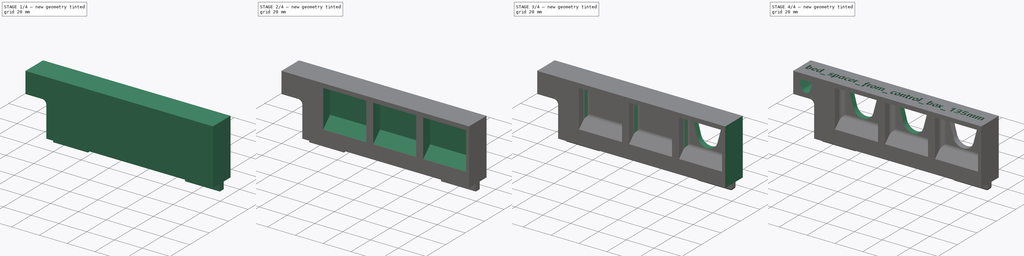
[diagram: build sequence overview — one tinted view per stage of 4, left to right]
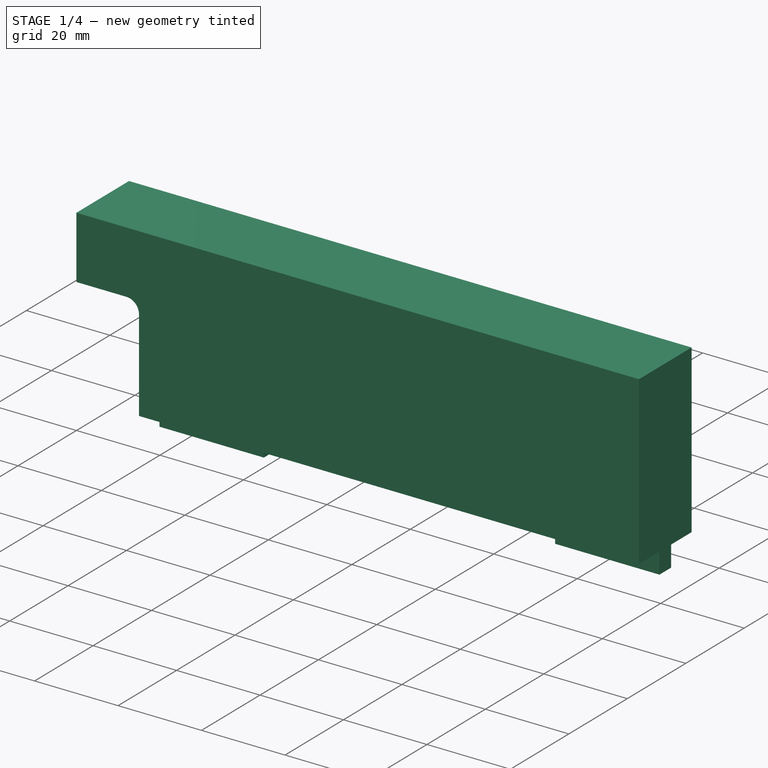
[diagram: stage 1 of 4 — iso view after this stage's code; geometry added in this stage tinted green]
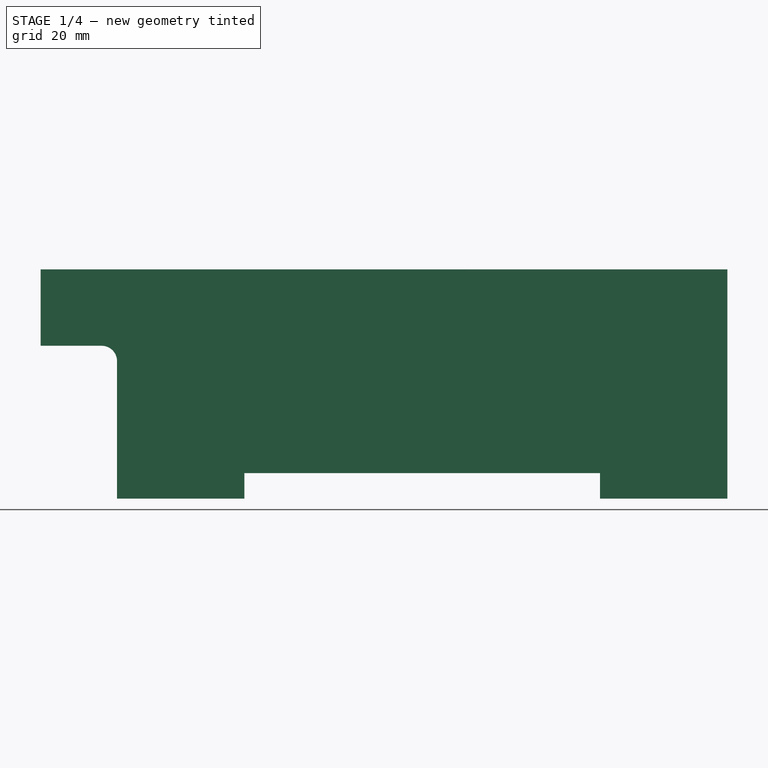
[diagram: stage 1 of 4 — front view after this stage's code; geometry added in this stage tinted green]
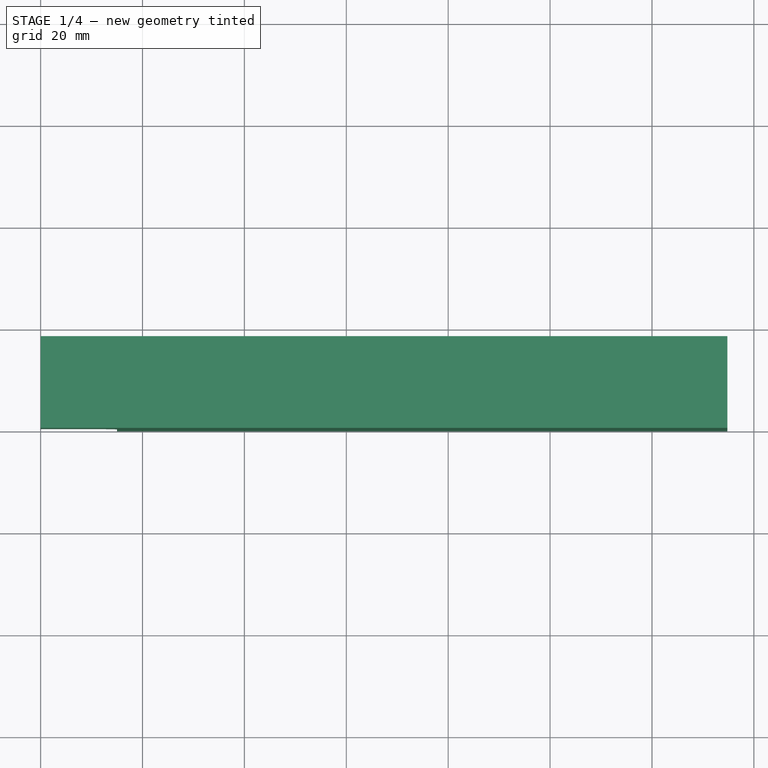
[diagram: stage 1 of 4 — top view after this stage's code; geometry added in this stage tinted green]
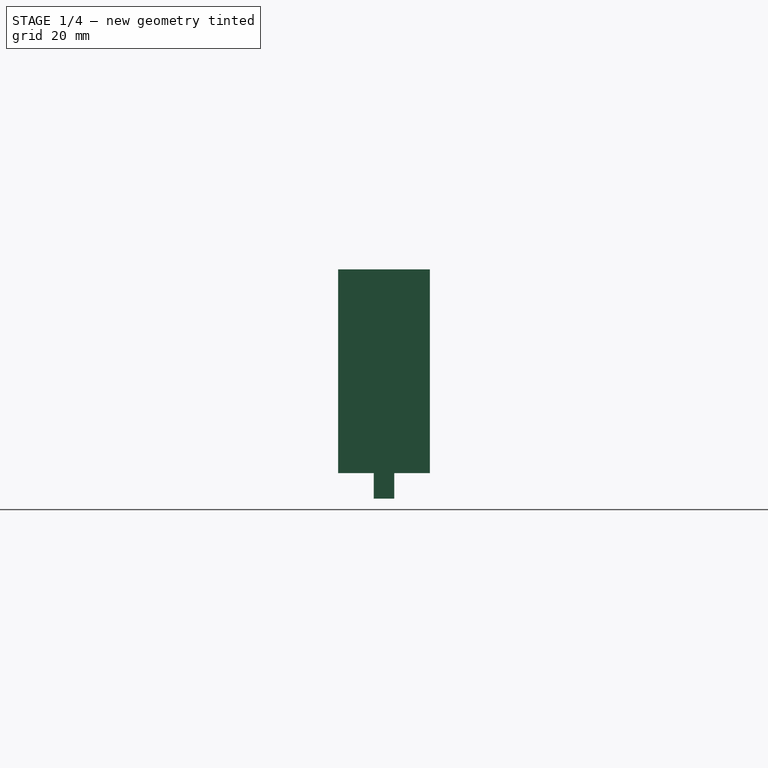
[diagram: stage 1 of 4 — right view after this stage's code; geometry added in this stage tinted green]
FCSTD DOCUMENT  (FreeCAD 0.17R8328 (Git))
Label: bed_spacer_from_control_box_135mm
License: All rights reserved
LicenseURL: http://en.wikipedia.org/wiki/All_rights_reserved
objects: Sketcher::SketchObject×7, PartDesign::Pocket×6, PartDesign::Pad×3, PartDesign::Fillet×2, PartDesign::Chamfer×1, PartDesign::LinearPattern×1, Part::Part2DObjectPython×1, PartDesign::Body×1
note: 31 computed .brp shape members not serialized (recipe doc carries the construction recipe); baked Part::Feature solids carry a one-line shape summary decoded from their .brp

FEATURE [Sketcher::SketchObject] Sketch
  MapMode = 5
  Support = -> [XY_Plane]
  sketch-geometry (4):
    g0: LineSegment StartX=0 StartY=0 StartZ=0 EndX=134.8 EndY=0 EndZ=0
    g1: LineSegment StartX=134.8 StartY=0 StartZ=0 EndX=134.8 EndY=18 EndZ=0
    g2: LineSegment StartX=134.8 StartY=18 StartZ=0 EndX=0 EndY=18 EndZ=0
    g3: LineSegment StartX=0 StartY=18 StartZ=0 EndX=0 EndY=0 EndZ=0
  constraints (11):
    c: Coincident(g0,g1)
    c: Coincident(g1,g2)
    c: Coincident(g2,g3)
    c: Coincident(g3,g0)
    c: Horizontal(g0)
    c: Horizontal(g2)
    c: Vertical(g1)
    c: Vertical(g3)
    c: Coincident(g0,g-1)
    c: DistanceX(g2,g1) = 134.8
    c: DistanceY(g0,g1) = 18
FEATURE [PartDesign::Pad] Pad
  Length = 40
  Length2 = 100
  Profile = -> Sketch
  Type = 0
FEATURE [Sketcher::SketchObject] Sketch001
  MapMode = 5
  Placement = pos=(0,0,0) rot=(1,0,0;1.5708rad)
  Support = -> [Pad]
  sketch-geometry (5):
    g0: LineSegment StartX=0 StartY=25 StartZ=0 EndX=12 EndY=25 EndZ=0
    g1: LineSegment StartX=0 StartY=25 StartZ=0 EndX=0 EndY=0 EndZ=0
    g2: LineSegment StartX=0 StartY=0 StartZ=0 EndX=15 EndY=0 EndZ=0
    g3: LineSegment StartX=15 StartY=0 StartZ=0 EndX=15 EndY=22 EndZ=0
    g4: ArcOfCircle CenterX=12 CenterY=22 CenterZ=0 NormalX=0 NormalY=0 NormalZ=1 Radius=3 StartAngle=0 EndAngle=1.5708
  constraints (13):
    c: Horizontal(g0)
    c: Coincident(g1,g0)
    c: Vertical(g1)
    c: Coincident(g2,g1)
    c: Horizontal(g2)
    c: Coincident(g3,g2)
    c: Vertical(g3)
    c: Tangent(g0,g4) = 1.5708
    c: Tangent(g3,g4) = -1.5708
    c: Coincident(g1,g-1)
    c: DistanceY(g1,g1) = 25
    c: Radius(g4) = 3
    c: DistanceX(g0,g2) = 15
FEATURE [PartDesign::Pocket] Pocket
  BaseFeature = -> Pad
  Length = 5
  Profile = -> Sketch001
  Type = 1
FEATURE [Sketcher::SketchObject] Sketch002
  ExternalGeometry = -> [Pocket]
  MapMode = 5
  Placement = pos=(0,0,0) rot=(1,0,0;3.14159rad)
  Support = -> [Pocket]
  sketch-geometry (11):
    g0: LineSegment StartX=15 StartY=-7 StartZ=0 EndX=40 EndY=-7 EndZ=0
    g1: LineSegment StartX=40 StartY=-7 StartZ=0 EndX=40 EndY=-11 EndZ=0
    g2: LineSegment StartX=40 StartY=-11 StartZ=0 EndX=15 EndY=-11 EndZ=0
    g3: LineSegment StartX=15 StartY=-11 StartZ=0 EndX=15 EndY=-7 EndZ=0
    g4: LineSegment StartX=109.8 StartY=-7 StartZ=0 EndX=134.8 EndY=-7 EndZ=0
    g5: LineSegment StartX=134.8 StartY=-7 StartZ=0 EndX=134.8 EndY=-11 EndZ=0
    g6: LineSegment StartX=134.8 StartY=-11 StartZ=0 EndX=109.8 EndY=-11 EndZ=0
    g7: LineSegment StartX=109.8 StartY=-11 StartZ=0 EndX=109.8 EndY=-7 EndZ=0
    g8: LineSegment [constr] StartX=15 StartY=0 StartZ=0 EndX=40 EndY=-7 EndZ=0
    g9: LineSegment [constr] StartX=15 StartY=-18 StartZ=0 EndX=40 EndY=-11 EndZ=0
    g10: LineSegment [constr] StartX=40 StartY=-7 StartZ=0 EndX=109.8 EndY=-7 EndZ=0
  constraints (31):
    c: Coincident(g0,g1)
    c: Coincident(g1,g2)
    c: Coincident(g2,g3)
    c: Coincident(g3,g0)
    c: Horizontal(g0)
    c: Horizontal(g2)
    c: Vertical(g1)
    c: Coincident(g4,g5)
    c: Coincident(g5,g6)
    c: Coincident(g6,g7)
    c: Coincident(g7,g4)
    c: Horizontal(g4)
    c: Horizontal(g6)
    c: Vertical(g5)
    c: Vertical(g7)
    c: Equal(g4,g0)
    c: Equal(g0,g2)
    c: Equal(g2,g6)
    c: DistanceX(g4,g4) = 25
    c: PointOnObject(g0,g-4)
    c: Equal(g1,g7)
    c: DistanceY(g7,g7) = 4
    c: PointOnObject(g5,g-5)
    c: Coincident(g8,g-4)
    c: Coincident(g8,g0)
    c: Coincident(g9,g-4)
    c: Coincident(g9,g1)
    c: Equal(g9,g8)
    c: Coincident(g10,g0)
    c: Horizontal(g10)
    c: Coincident(g4,g10)
FEATURE [PartDesign::Pad] Pad001
  BaseFeature = -> Pocket
  Length = 5
  Length2 = 100
  Profile = -> Sketch002
  Type = 0
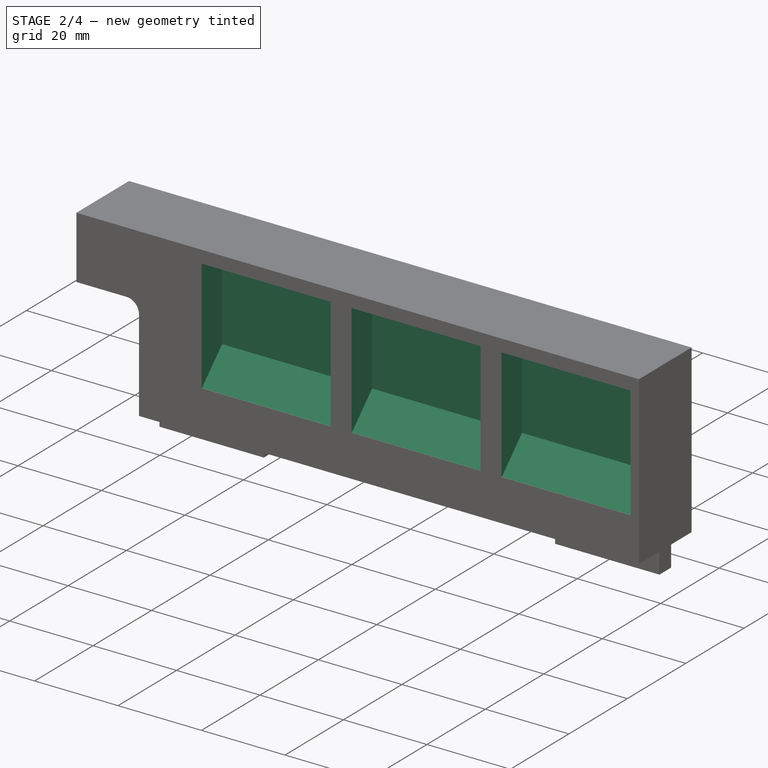
[diagram: stage 2 of 4 — iso view after this stage's code; geometry added in this stage tinted green]
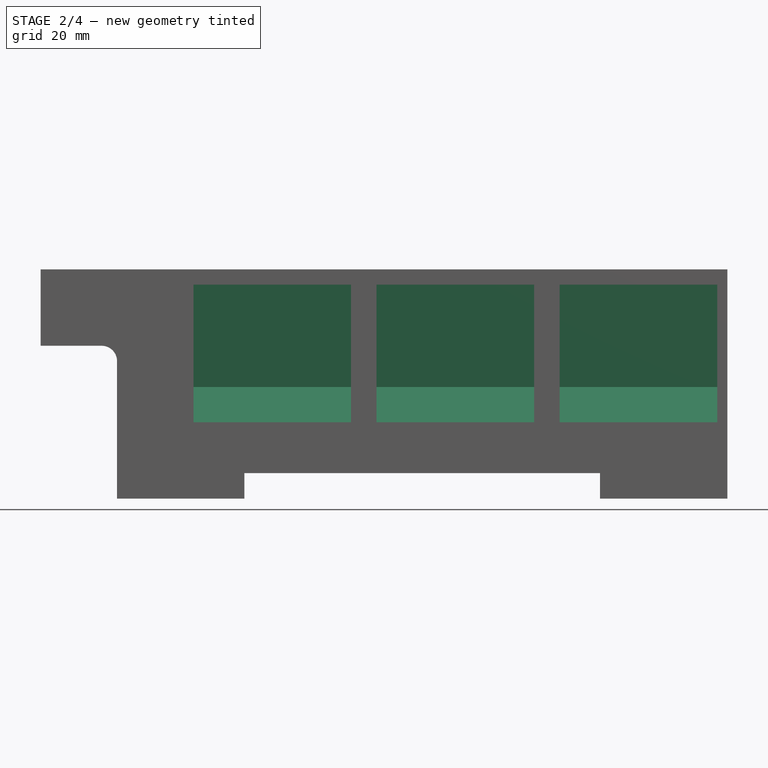
[diagram: stage 2 of 4 — front view after this stage's code; geometry added in this stage tinted green]
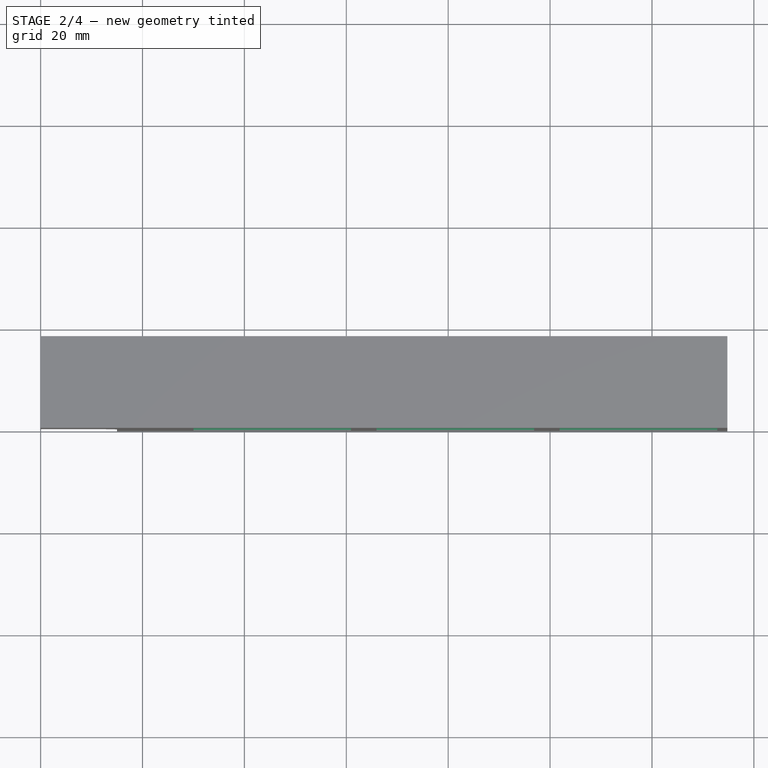
[diagram: stage 2 of 4 — top view after this stage's code; geometry added in this stage tinted green]
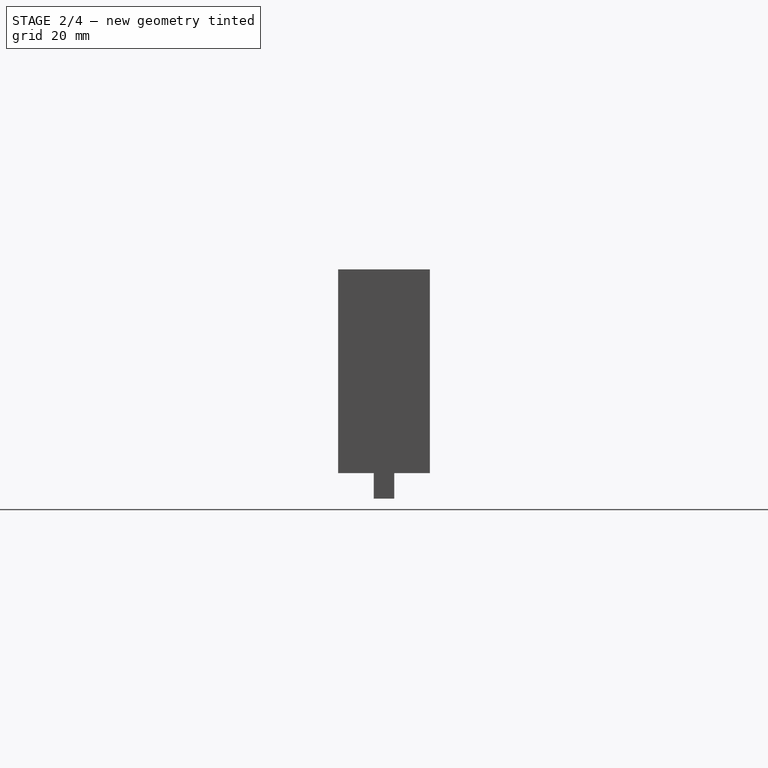
[diagram: stage 2 of 4 — right view after this stage's code; geometry added in this stage tinted green]
FEATURE [Sketcher::SketchObject] Sketch003
  ExternalGeometry = -> [Pad001]
  MapMode = 5
  Placement = pos=(0,18,0) rot=(0,0.707107,0.707107;3.14159rad)
  Support = -> [Pad001]
  sketch-geometry (14):
    g0: LineSegment StartX=-132.8 StartY=37 StartZ=0 EndX=-101.867 EndY=37 EndZ=0
    g1: LineSegment StartX=-101.867 StartY=37 StartZ=0 EndX=-101.867 EndY=10 EndZ=0
    g2: LineSegment StartX=-101.867 StartY=10 StartZ=0 EndX=-132.8 EndY=10 EndZ=0
    g3: LineSegment StartX=-132.8 StartY=10 StartZ=0 EndX=-132.8 EndY=37 EndZ=0
    g4: LineSegment StartX=-60.9333 StartY=37 StartZ=0 EndX=-30 EndY=37 EndZ=0
    g5: LineSegment StartX=-30 StartY=37 StartZ=0 EndX=-30 EndY=10 EndZ=0
    g6: LineSegment StartX=-30 StartY=10 StartZ=0 EndX=-60.9333 EndY=10 EndZ=0
    g7: LineSegment StartX=-60.9333 StartY=10 StartZ=0 EndX=-60.9333 EndY=37 EndZ=0
    g8: LineSegment StartX=-96.8667 StartY=37 StartZ=0 EndX=-65.9333 EndY=37 EndZ=0
    g9: LineSegment StartX=-65.9333 StartY=37 StartZ=0 EndX=-65.9333 EndY=10 EndZ=0
    g10: LineSegment StartX=-65.9333 StartY=10 StartZ=0 EndX=-96.8667 EndY=10 EndZ=0
    g11: LineSegment StartX=-96.8667 StartY=10 StartZ=0 EndX=-96.8667 EndY=37 EndZ=0
    g12: LineSegment [constr] StartX=-101.867 StartY=37 StartZ=0 EndX=-96.8667 EndY=37 EndZ=0
    g13: LineSegment [constr] StartX=-65.9333 StartY=37 StartZ=0 EndX=-60.9333 EndY=37 EndZ=0
  constraints (41):
    c: Coincident(g0,g1)
    c: Coincident(g1,g2)
    c: Coincident(g2,g3)
    c: Coincident(g3,g0)
    c: Horizontal(g0)
    c: Horizontal(g2)
    c: Vertical(g1)
    c: Vertical(g3)
    c: Coincident(g4,g5)
    c: Coincident(g5,g6)
    c: Coincident(g6,g7)
    c: Coincident(g7,g4)
    c: Horizontal(g4)
    c: Horizontal(g6)
    c: Vertical(g5)
    c: Vertical(g7)
    c: Coincident(g8,g9)
    c: Coincident(g9,g10)
    c: Coincident(g10,g11)
    c: Coincident(g11,g8)
    c: Horizontal(g8)
    c: Horizontal(g10)
    c: Vertical(g9)
    c: Vertical(g11)
    c: Equal(g1,g11)
    c: Equal(g11,g9)
    c: Equal(g9,g7)
    c: Equal(g4,g8)
    c: Equal(g8,g0)
    c: Coincident(g12,g0)
    c: Coincident(g12,g8)
    c: Horizontal(g12)
    c: Coincident(g13,g8)
    c: Coincident(g13,g4)
    c: Horizontal(g13)
    c: Equal(g13,g12)
    c: DistanceX(g12,g12) = 5
    c: DistanceY(g-1,g5) = 10
    c: DistanceY(g4,g-4) = 3
    c: DistanceX(g4,g-4) = 30
    c: DistanceX(g-4,g0) = 2
FEATURE [PartDesign::Pocket] Pocket001
  BaseFeature = -> Pad001
  Length = 7
  Profile = -> Sketch003
  Type = 0
FEATURE [Sketcher::SketchObject] Sketch004
  ExternalGeometry = -> [Pocket001]
  MapMode = 5
  Placement = pos=(0,0,0) rot=(1,0,0;1.5708rad)
  Support = -> [Pocket001]
  sketch-geometry (14):
    g0: LineSegment StartX=30 StartY=37 StartZ=0 EndX=60.9333 EndY=37 EndZ=0
    g1: LineSegment StartX=60.9333 StartY=37 StartZ=0 EndX=60.9333 EndY=10 EndZ=0
    g2: LineSegment StartX=60.9333 StartY=10 StartZ=0 EndX=30 EndY=10 EndZ=0
    g3: LineSegment StartX=30 StartY=10 StartZ=0 EndX=30 EndY=37 EndZ=0
    g4: LineSegment StartX=65.9333 StartY=37 StartZ=0 EndX=96.8667 EndY=37 EndZ=0
    g5: LineSegment StartX=96.8667 StartY=37 StartZ=0 EndX=96.8667 EndY=10 EndZ=0
    g6: LineSegment StartX=96.8667 StartY=10 StartZ=0 EndX=65.9333 EndY=10 EndZ=0
    g7: LineSegment StartX=65.9333 StartY=10 StartZ=0 EndX=65.9333 EndY=37 EndZ=0
    g8: LineSegment StartX=101.867 StartY=37 StartZ=0 EndX=132.8 EndY=37 EndZ=0
    g9: LineSegment StartX=132.8 StartY=37 StartZ=0 EndX=132.8 EndY=10 EndZ=0
    g10: LineSegment StartX=132.8 StartY=10 StartZ=0 EndX=101.867 EndY=10 EndZ=0
    g11: LineSegment StartX=101.867 StartY=10 StartZ=0 EndX=101.867 EndY=37 EndZ=0
    g12: LineSegment [constr] StartX=60.9333 StartY=37 StartZ=0 EndX=65.9333 EndY=37 EndZ=0
    g13: LineSegment [constr] StartX=96.8667 StartY=37 StartZ=0 EndX=101.867 EndY=37 EndZ=0
  constraints (40):
    c: Coincident(g0,g1)
    c: Coincident(g1,g2)
    c: Coincident(g2,g3)
    c: Coincident(g3,g0)
    c: Horizontal(g0)
    c: Horizontal(g2)
    c: Vertical(g1)
    c: Vertical(g3)
    c: Coincident(g4,g5)
    c: Coincident(g5,g6)
    c: Coincident(g6,g7)
    c: Coincident(g7,g4)
    c: Horizontal(g4)
    c: Horizontal(g6)
    c: Vertical(g5)
    c: Vertical(g7)
    c: Coincident(g8,g9)
    c: Coincident(g9,g10)
    c: Coincident(g10,g11)
    c: Coincident(g11,g8)
    c: Horizontal(g8)
    c: Horizontal(g10)
    c: Vertical(g9)
    c: Vertical(g11)
    c: Equal(g8,g4)
    c: Equal(g4,g0)
    c: Equal(g1,g7)
    c: Equal(g7,g11)
    c: Coincident(g12,g0)
    c: Horizontal(g12)
    c: Coincident(g4,g12)
    c: Coincident(g13,g4)
    c: Horizontal(g13)
    c: Coincident(g8,g13)
    c: Equal(g13,g12)
    c: DistanceX(g13,g13) = 5
    c: DistanceX(g-1,g0) = 30
    c: DistanceY(g-1,g2) = 10
    c: DistanceY(g8,g-4) = 3
    c: DistanceX(g8,g-4) = 2
FEATURE [PartDesign::Pocket] Pocket002
  BaseFeature = -> Pocket001
  Length = 7
  Profile = -> Sketch004
  Type = 0
FEATURE [PartDesign::Chamfer] Chamfer
  Base = -> Pocket002 [Edge63,Edge49,Edge55,Edge111,Edge101,Edge117]
  BaseFeature = -> Pocket002
  Size = 6.9
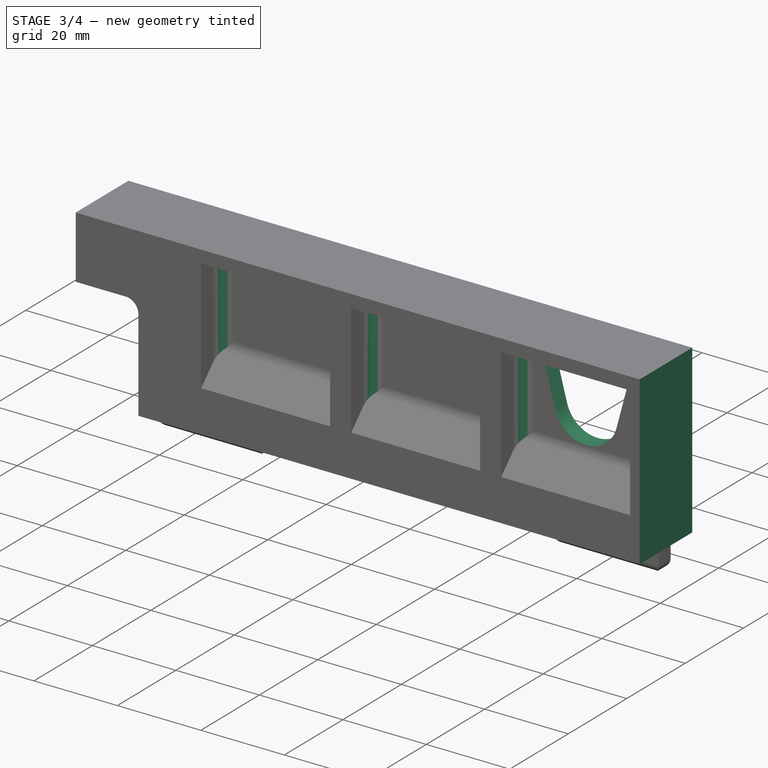
[diagram: stage 3 of 4 — iso view after this stage's code; geometry added in this stage tinted green]
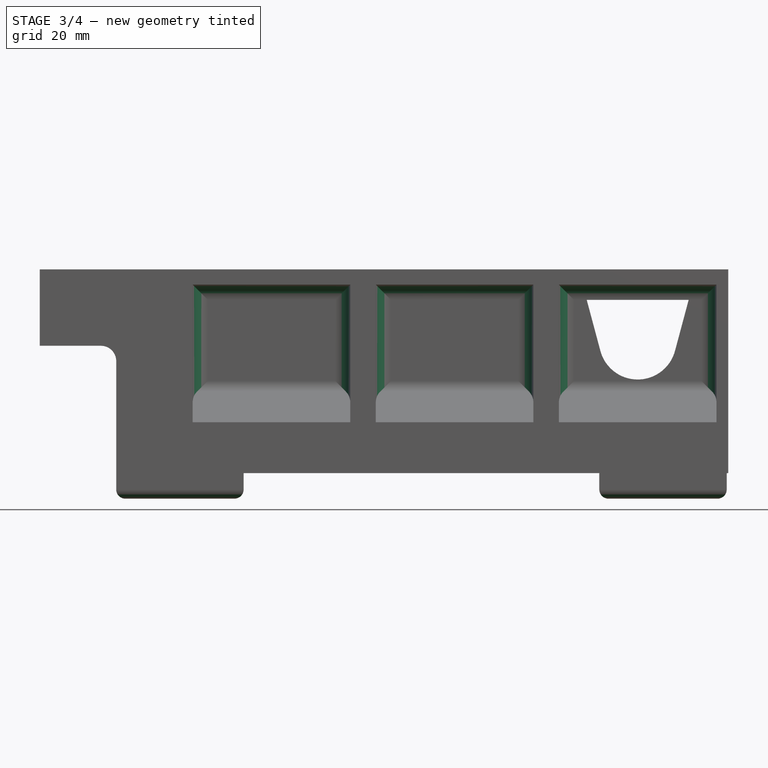
[diagram: stage 3 of 4 — front view after this stage's code; geometry added in this stage tinted green]
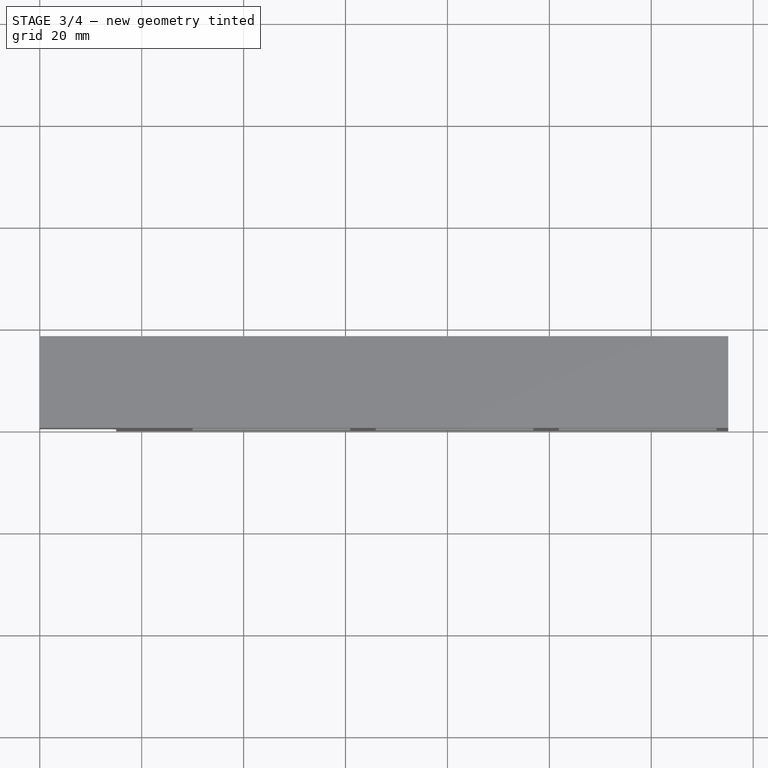
[diagram: stage 3 of 4 — top view after this stage's code; geometry added in this stage tinted green]
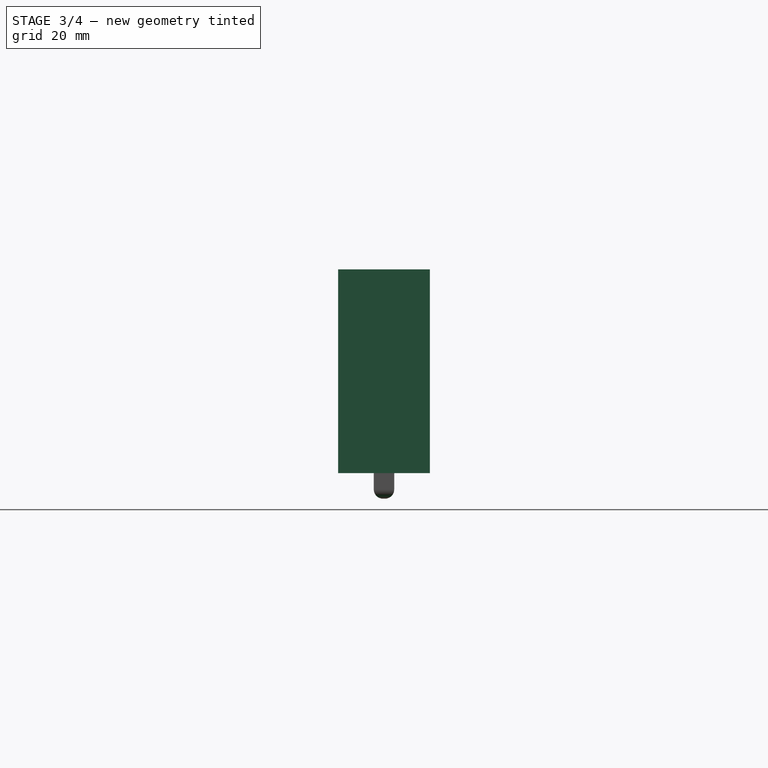
[diagram: stage 3 of 4 — right view after this stage's code; geometry added in this stage tinted green]
FEATURE [PartDesign::Fillet] Fillet
  Base = -> Chamfer [Face54,Face50,Face53,Face34,Face2,Face32]
  BaseFeature = -> Chamfer
  Radius = 3
FEATURE [PartDesign::Fillet] Fillet001
  Base = -> Fillet [Face56,Face57]
  BaseFeature = -> Fillet
  Radius = 1.8
FEATURE [PartDesign::Pad] Pad002
  BaseFeature = -> Fillet001
  Length = 0.3
  Length2 = 100
  Profile = -> Fillet001 [Face15]
  Type = 0
FEATURE [Sketcher::SketchObject] Sketch005
  ExternalGeometry = -> [Pad002]
  MapMode = 5
  Placement = pos=(0,18,0) rot=(0,0.707107,0.707107;3.14159rad)
  Support = -> [Pad002]
  sketch-geometry (6):
    g0: LineSegment StartX=-127.333 StartY=34 StartZ=0 EndX=-124.654 EndY=24 EndZ=0
    g1: LineSegment StartX=-127.333 StartY=34 StartZ=0 EndX=-107.333 EndY=34 EndZ=0
    g2: LineSegment StartX=-107.333 StartY=34 StartZ=0 EndX=-110.013 EndY=24 EndZ=0
    g3: ArcOfCircle CenterX=-117.333 CenterY=25.9615 CenterZ=0 NormalX=0 NormalY=0 NormalZ=1 Radius=7.57875 StartAngle=3.40339 EndAngle=6.02139
    g4: LineSegment [constr] StartX=-127.333 StartY=34 StartZ=0 EndX=-129.8 EndY=34 EndZ=0
    g5: LineSegment [constr] StartX=-107.333 StartY=34 StartZ=0 EndX=-104.867 EndY=34 EndZ=0
  constraints (15):
    c: Coincident(g1,g0)
    c: Horizontal(g1)
    c: Coincident(g2,g1)
    c: Tangent(g0,g3) = -1.5708
    c: Tangent(g2,g3) = 1.5708
    c: Equal(g0,g2)
    c: Angle(g0,g1) = 1.309
    c: DistanceX(g1,g1) = 20
    c: Coincident(g4,g0)
    c: Coincident(g4,g-3)
    c: Coincident(g5,g1)
    c: Coincident(g5,g-3)
    c: Equal(g5,g4)
    c: DistanceY(g0,g4) = 0
    c: DistanceY(g2,g5) = 10
FEATURE [PartDesign::Pocket] Pocket003
  BaseFeature = -> Pad002
  Length = 5
  Profile = -> Sketch005
  Type = 1
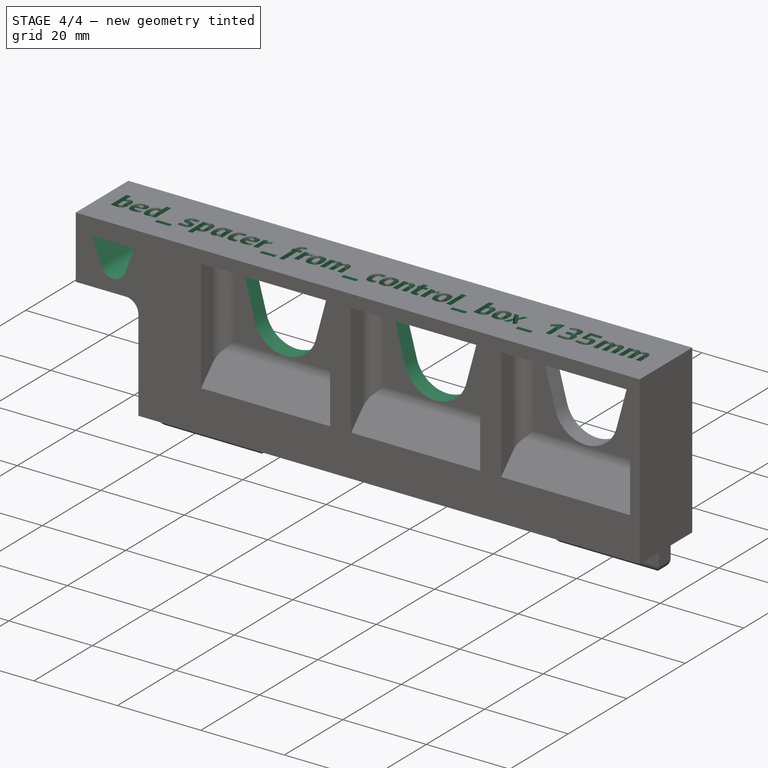
[diagram: stage 4 of 4 — iso view after this stage's code; geometry added in this stage tinted green]
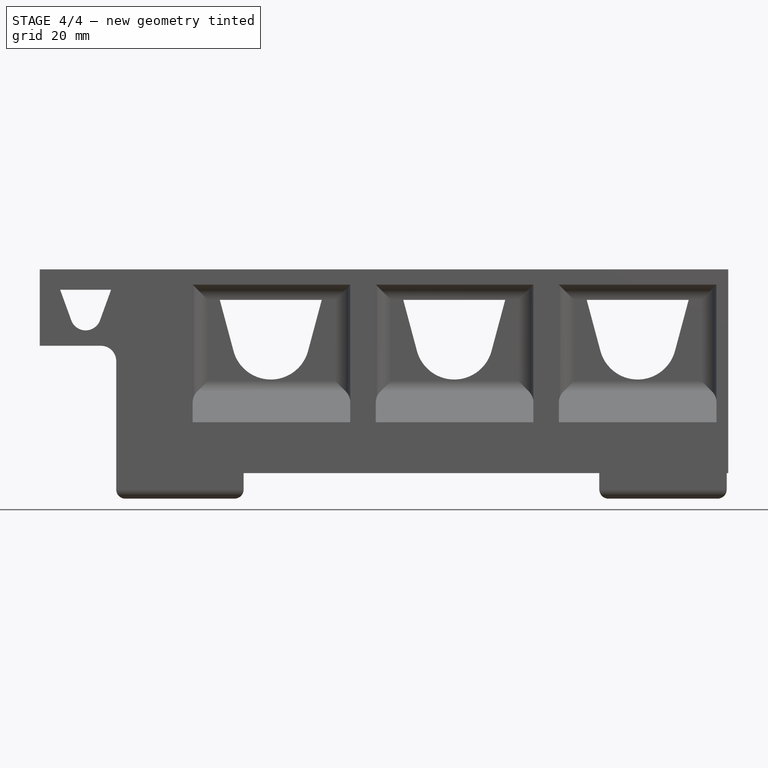
[diagram: stage 4 of 4 — front view after this stage's code; geometry added in this stage tinted green]
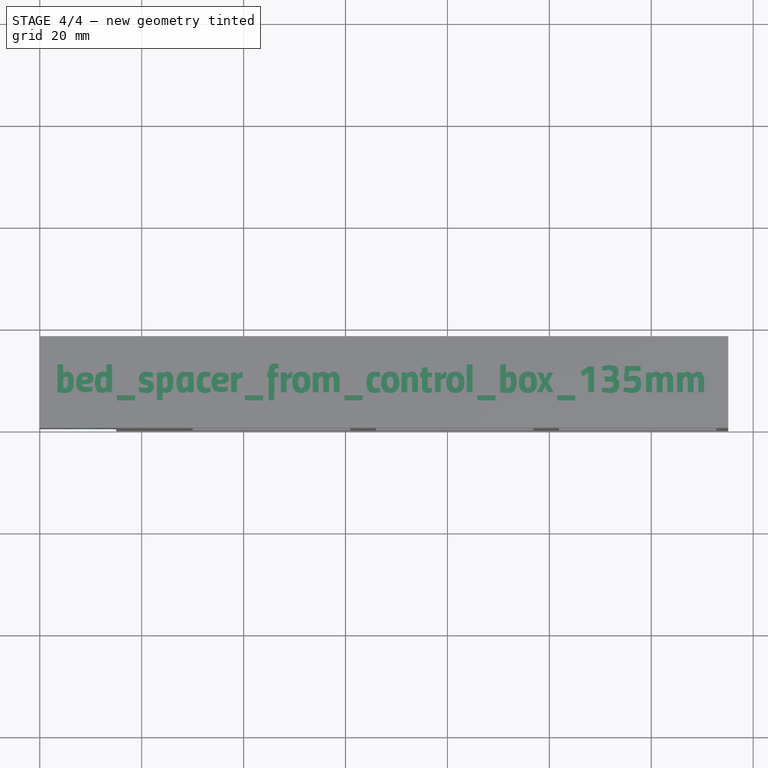
[diagram: stage 4 of 4 — top view after this stage's code; geometry added in this stage tinted green]
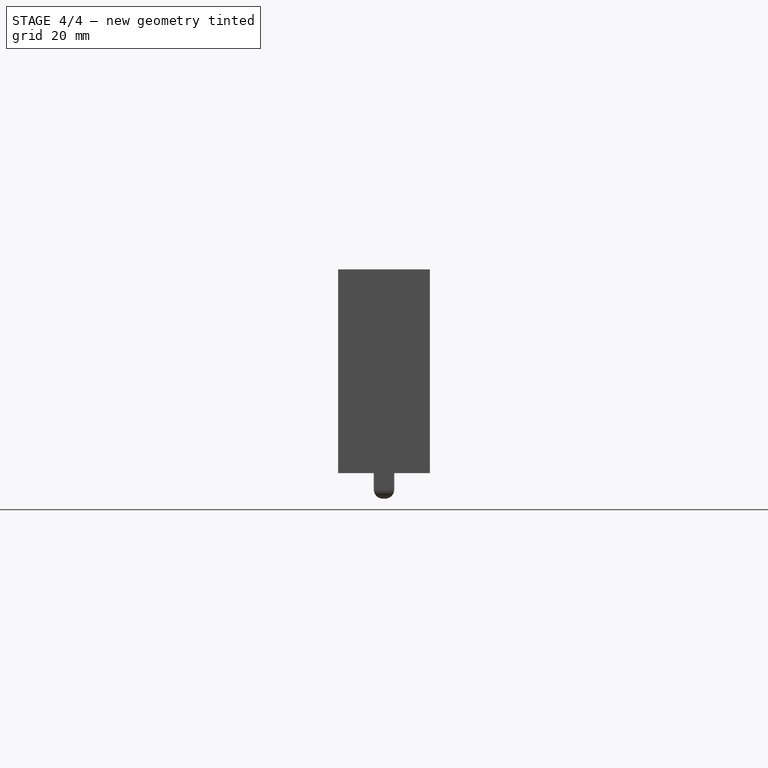
[diagram: stage 4 of 4 — right view after this stage's code; geometry added in this stage tinted green]
FEATURE [PartDesign::LinearPattern] LinearPattern
  BaseFeature = -> Pocket003
  Direction = -> Sketch005 [H_Axis]
  Length = 72
  Occurrences = 3
  Originals = -> [Pocket003]
FEATURE [Sketcher::SketchObject] Sketch006
  ExternalGeometry = -> [LinearPattern]
  MapMode = 5
  Placement = pos=(0,18,0) rot=(0,0.707107,0.707107;3.14159rad)
  Support = -> [LinearPattern]
  sketch-geometry (4):
    g0: LineSegment StartX=-14 StartY=36 StartZ=0 EndX=-4 EndY=36 EndZ=0
    g1: LineSegment StartX=-14 StartY=36 StartZ=0 EndX=-11.8196 EndY=30 EndZ=0
    g2: LineSegment StartX=-4 StartY=36 StartZ=0 EndX=-6.18041 EndY=30 EndZ=0
    g3: ArcOfCircle CenterX=-9 CenterY=31.0246 CenterZ=0 NormalX=0 NormalY=0 NormalZ=1 Radius=3 StartAngle=3.49016 EndAngle=5.93462
  constraints (11):
    c: Horizontal(g0)
    c: Coincident(g1,g0)
    c: Coincident(g2,g0)
    c: Tangent(g1,g3) = -1.5708
    c: Tangent(g2,g3) = 1.5708
    c: DistanceX(g0,g0) = 10
    c: Equal(g2,g1)
    c: DistanceY(g2,g0) = 6
    c: Radius(g3) = 3
    c: DistanceY(g0,g-3) = 4
    c: DistanceX(g0,g-3) = 4
FEATURE [PartDesign::Pocket] Pocket004
  BaseFeature = -> LinearPattern
  Length = 5
  Profile = -> Sketch006
  Type = 1
FEATURE [Part::Part2DObjectPython] ShapeString  # Draft 2D object (typed FeaturePython)
  FontFile = <userpath>/Documents/Titillium-BoldUpright.otf
  Placement = pos=(3,7,40) rot=(0,0,1;0rad)
  Size = 3
  String = bed_spacer_from_control_box_135mm
  Tracking = 0
FEATURE [PartDesign::Pocket] Pocket005
  BaseFeature = -> Pocket004
  Length = 2
  Profile = -> ShapeString
  Type = 0
FEATURE [PartDesign::Body] Body
  Model = -> [Sketch,Pad,Sketch001,Pocket,Sketch002,Pad001,Sketch003,Pocket001,Sketch004,Pocket002,Chamfer,Fillet,Fillet001,Pad002,Sketch005,Pocket003,LinearPattern,Sketch006,Pocket004,ShapeString,Pocket005]
  Origin = -> BodyOrigin
  Tip = -> Pocket005
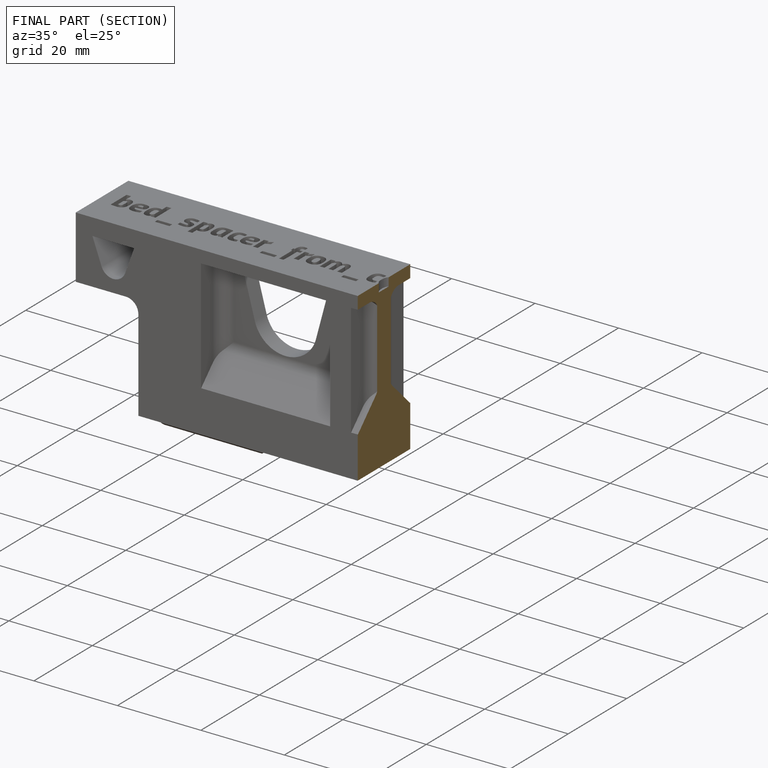
[diagram: finished part — half-section view (interior)]
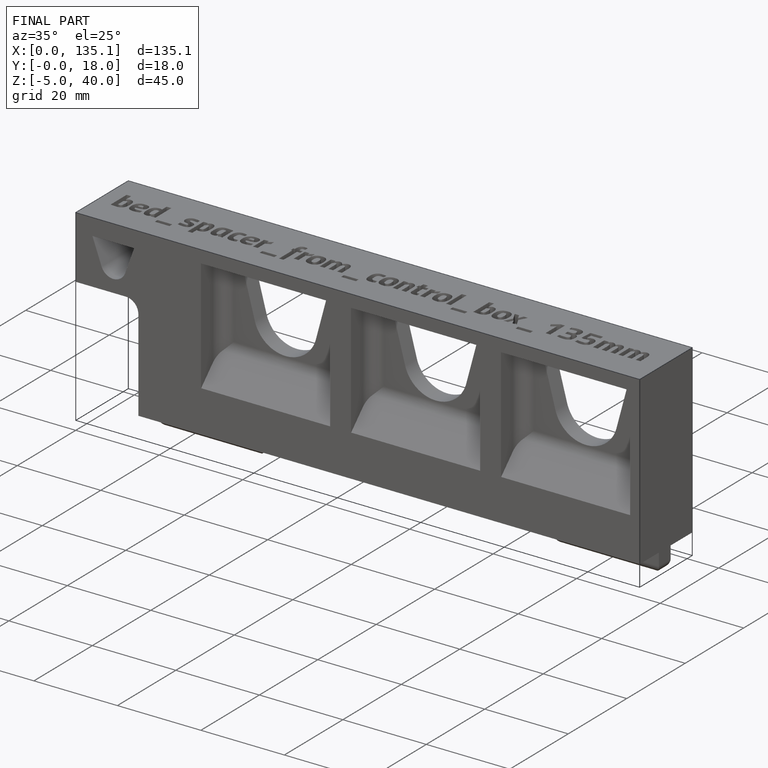
[diagram: finished part — iso view with bounding-box wireframe]
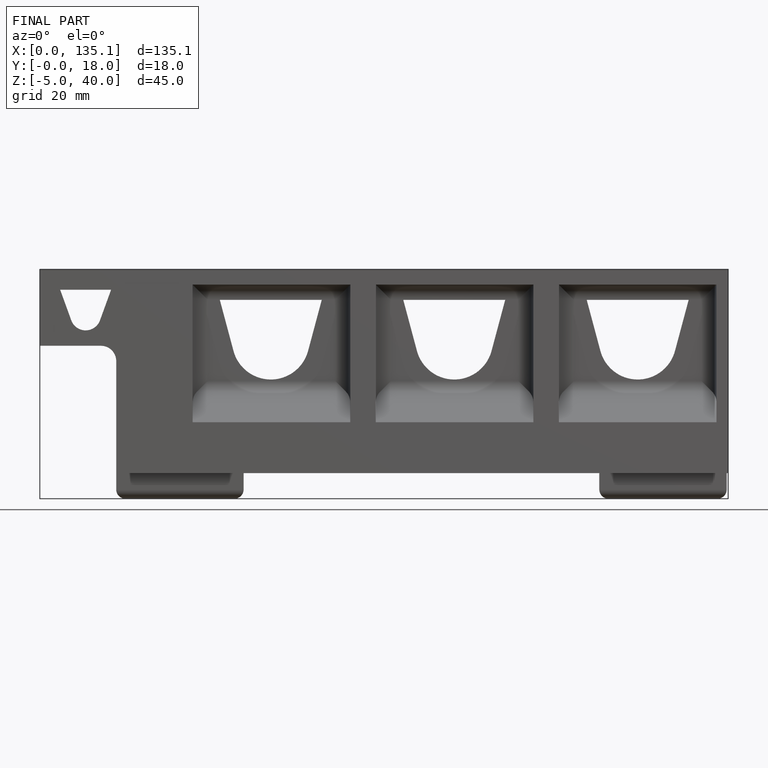
[diagram: finished part — front view with bounding-box wireframe]
